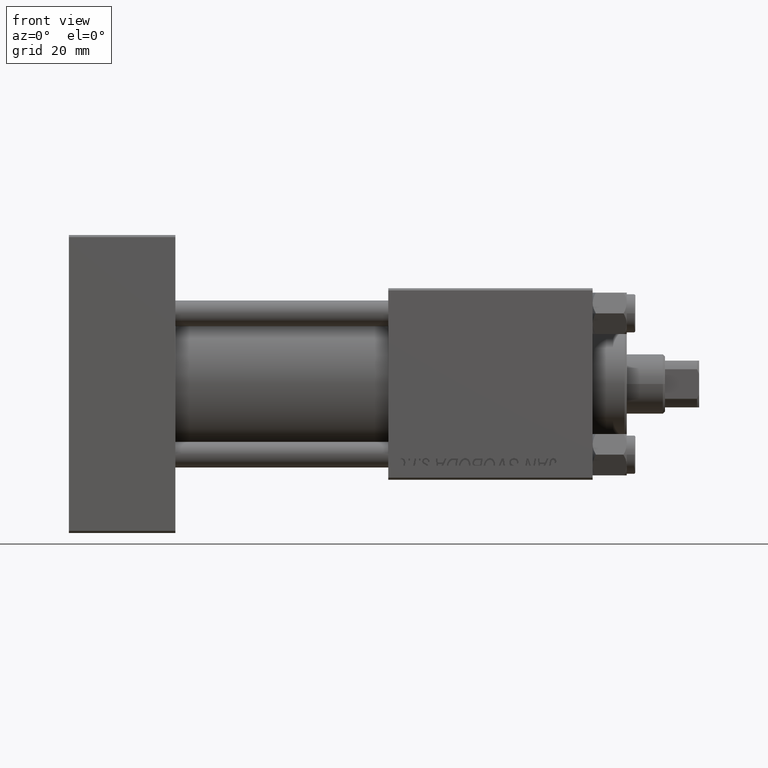
[diagram: clean part render]
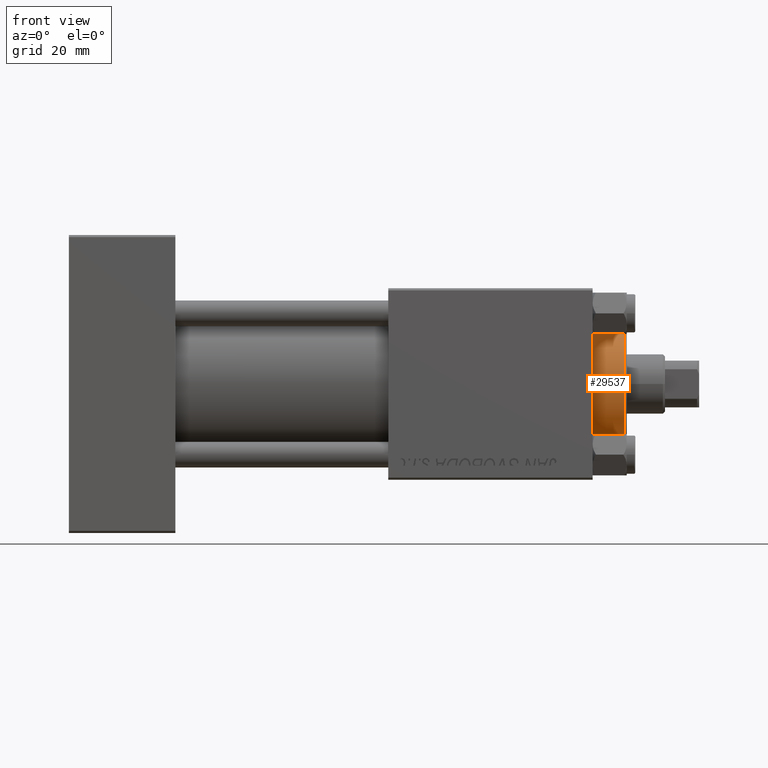
[diagram: same view with one face highlighted and labeled with its STEP entity id]
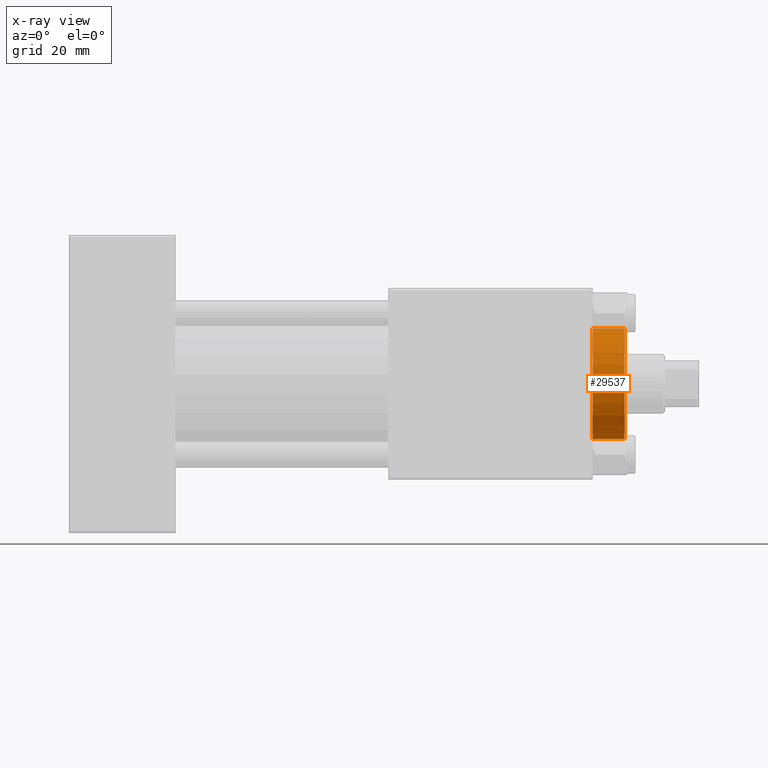
[diagram: x-ray of the same camera — body ghosted, the highlighted face saturated]
A machine part, front view. The second image highlights one B-rep face of the part: STEP entity #29537.
The next image is the same camera in x-ray: the body ghosted, the highlighted face saturated — about 1% of this face is hidden behind the body in this view.
In plain terms, the highlighted cylindrical surface (partial cylindrical patch) has radius 13 mm, axis along (-1, -0, 0).
Its self-contained STEP definition (entity closure, byte-faithful):
#460 = VERTEX_POINT ( 'NONE', #16001 ) ;
#791 = AXIS2_PLACEMENT_3D ( 'NONE', #49083, #8604, #49602 ) ;
#2115 = VERTEX_POINT ( 'NONE', #47453 ) ;
#3752 = DIRECTION ( 'NONE',  ( 1.000000000000000000, 0.000000000000000000, 0.000000000000000000 ) ) ;
#5027 = VERTEX_POINT ( 'NONE', #39788 ) ;
#6198 = ORIENTED_EDGE ( 'NONE', *, *, #46169, .T. ) ;
#8604 = DIRECTION ( 'NONE',  ( -0.000000000000000000, -0.000000000000000000, -1.000000000000000000 ) ) ;
#8802 = VERTEX_POINT ( 'NONE', #40996 ) ;
#10136 = ORIENTED_EDGE ( 'NONE', *, *, #51669, .F. ) ;
#11277 = DIRECTION ( 'NONE',  ( -0.000000000000000000, -0.000000000000000000, -1.000000000000000000 ) ) ;
#14978 = EDGE_CURVE ( 'NONE', #8802, #5027, #31423, .T. ) ;
#15871 = CIRCLE ( 'NONE', #36010, 13.00000000000000178 ) ;
#16001 = CARTESIAN_POINT ( 'NONE',  ( 13.00000000000000178, 1.592040838891559293E-15, 28.69999999999999929 ) ) ;
#16091 = VECTOR ( 'NONE', #51881, 1000.000000000000000 ) ;
#17049 = DIRECTION ( 'NONE',  ( 1.000000000000000000, 0.000000000000000000, 0.000000000000000000 ) ) ;
#20035 = CARTESIAN_POINT ( 'NONE',  ( 0.000000000000000000, 0.000000000000000000, 36.20000000000000995 ) ) ;
#25719 = CARTESIAN_POINT ( 'NONE',  ( 0.000000000000000000, 0.000000000000000000, 28.69999999999999929 ) ) ;
#25921 = VECTOR ( 'NONE', #11277, 1000.000000000000000 ) ;
#29537 = ADVANCED_FACE ( 'NONE', ( #33561 ), #36723, .T. ) ;
#31264 = CARTESIAN_POINT ( 'NONE',  ( -13.00000000000000178, 0.000000000000000000, 36.69999999999999574 ) ) ;
#31423 = CIRCLE ( 'NONE', #38148, 13.00000000000000178 ) ;
#33561 = FACE_OUTER_BOUND ( 'NONE', #50164, .T. ) ;
#36010 = AXIS2_PLACEMENT_3D ( 'NONE', #25719, #37547, #17049 ) ;
#36723 = CYLINDRICAL_SURFACE ( 'NONE', #791, 13.00000000000000178 ) ;
#37547 = DIRECTION ( 'NONE',  ( 0.000000000000000000, 0.000000000000000000, 1.000000000000000000 ) ) ;
#38148 = AXIS2_PLACEMENT_3D ( 'NONE', #20035, #39768, #3752 ) ;
#39768 = DIRECTION ( 'NONE',  ( 0.000000000000000000, 0.000000000000000000, -1.000000000000000000 ) ) ;
#39788 = CARTESIAN_POINT ( 'NONE',  ( -13.00000000000000178, 0.000000000000000000, 36.20000000000000995 ) ) ;
#40996 = CARTESIAN_POINT ( 'NONE',  ( 13.00000000000000178, 1.592040838891559293E-15, 36.20000000000000995 ) ) ;
#42671 = EDGE_CURVE ( 'NONE', #2115, #460, #15871, .T. ) ;
#46169 = EDGE_CURVE ( 'NONE', #5027, #2115, #51495, .T. ) ;
#47453 = CARTESIAN_POINT ( 'NONE',  ( -13.00000000000000178, 0.000000000000000000, 28.69999999999999929 ) ) ;
#48467 = CARTESIAN_POINT ( 'NONE',  ( 13.00000000000000178, 1.592040838891559293E-15, 36.69999999999999574 ) ) ;
#49083 = CARTESIAN_POINT ( 'NONE',  ( 0.000000000000000000, 0.000000000000000000, 36.69999999999999574 ) ) ;
#49511 = ORIENTED_EDGE ( 'NONE', *, *, #42671, .T. ) ;
#49602 = DIRECTION ( 'NONE',  ( -1.000000000000000000, 0.000000000000000000, 0.000000000000000000 ) ) ;
#49694 = ORIENTED_EDGE ( 'NONE', *, *, #14978, .T. ) ;
#50164 = EDGE_LOOP ( 'NONE', ( #10136, #49694, #6198, #49511 ) ) ;
#51377 = LINE ( 'NONE', #48467, #16091 ) ;
#51495 = LINE ( 'NONE', #31264, #25921 ) ;
#51669 = EDGE_CURVE ( 'NONE', #8802, #460, #51377, .T. ) ;
#51881 = DIRECTION ( 'NONE',  ( -0.000000000000000000, -0.000000000000000000, -1.000000000000000000 ) ) ;